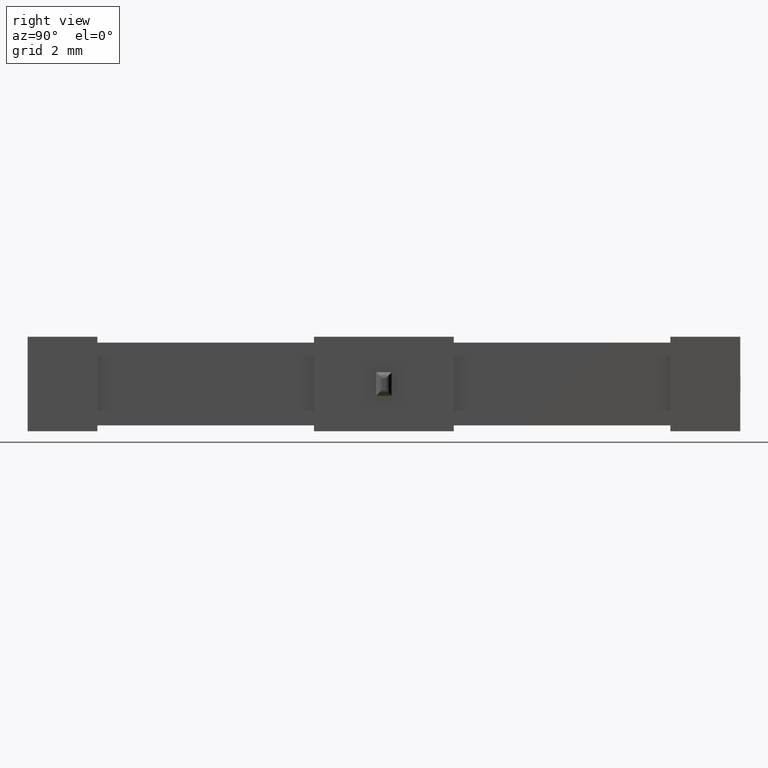
[diagram: clean part render]
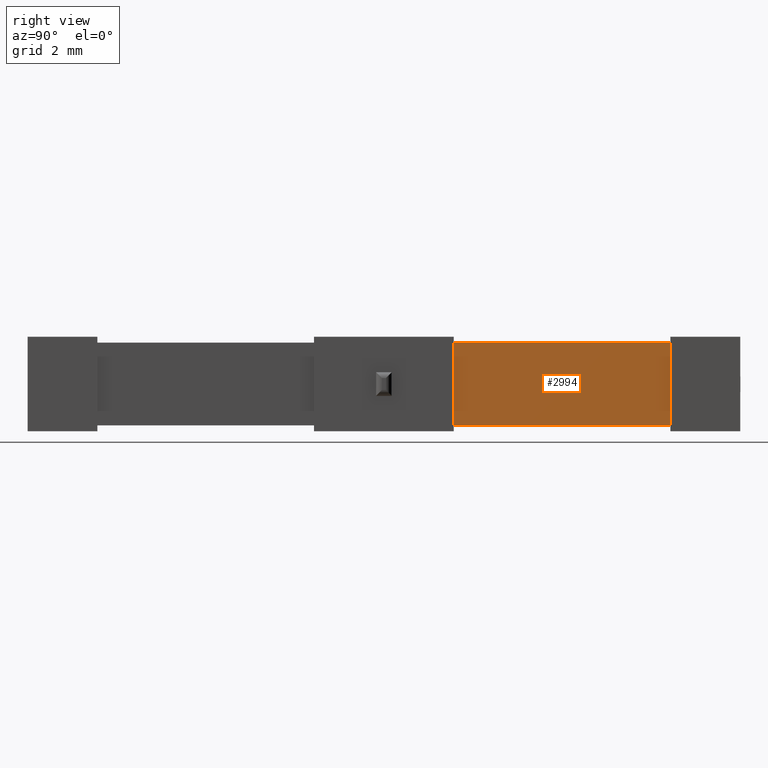
[diagram: same view with one face highlighted and labeled with its STEP entity id]
A machine part, right view. The second image highlights one B-rep face of the part: STEP entity #2994.
In plain terms, the highlighted planar face has unit normal (1, 0, 0).
Its self-contained STEP definition (entity closure, byte-faithful):
#124 = CARTESIAN_POINT ( 'NONE',  ( 2.999999999999999600, 10.82380000000000400, 2.249999999999999100 ) ) ;
#147 = VECTOR ( 'NONE', #696, 1000.000000000000000 ) ;
#228 = VECTOR ( 'NONE', #3019, 1000.000000000000000 ) ;
#390 = EDGE_CURVE ( 'NONE', #753, #2852, #2934, .T. ) ;
#535 = EDGE_CURVE ( 'NONE', #2852, #2542, #2005, .T. ) ;
#583 = EDGE_LOOP ( 'NONE', ( #796, #3065, #3138, #3170 ) ) ;
#616 = VECTOR ( 'NONE', #2770, 1000.000000000000000 ) ;
#696 = DIRECTION ( 'NONE',  ( 0.0000000000000000000, -1.000000000000000000, -1.576333487184506900E-016 ) ) ;
#753 = VERTEX_POINT ( 'NONE', #3317 ) ;
#790 = LINE ( 'NONE', #2794, #3371 ) ;
#796 = ORIENTED_EDGE ( 'NONE', *, *, #390, .T. ) ;
#1073 = CARTESIAN_POINT ( 'NONE',  ( 2.999999999999999600, 16.32620000000000700, 0.1500000000000005800 ) ) ;
#1496 = DIRECTION ( 'NONE',  ( 0.0000000000000000000, 0.0000000000000000000, -1.000000000000000000 ) ) ;
#1513 = DIRECTION ( 'NONE',  ( -0.0000000000000000000, -0.0000000000000000000, 1.000000000000000000 ) ) ;
#1672 = FACE_OUTER_BOUND ( 'NONE', #583, .T. ) ;
#2005 = LINE ( 'NONE', #124, #616 ) ;
#2009 = CARTESIAN_POINT ( 'NONE',  ( 2.999999999999999600, 0.0000000000000000000, 0.0000000000000000000 ) ) ;
#2140 = CARTESIAN_POINT ( 'NONE',  ( 2.999999999999999600, 10.82380000000000400, 2.249999999999999100 ) ) ;
#2224 = AXIS2_PLACEMENT_3D ( 'NONE', #2009, #3045, #1496 ) ;
#2250 = CARTESIAN_POINT ( 'NONE',  ( 2.999999999999999600, 16.32620000000000700, 2.250000000000000000 ) ) ;
#2506 = CARTESIAN_POINT ( 'NONE',  ( 2.999999999999999600, 16.32620000000000700, 0.1500000000000005800 ) ) ;
#2542 = VERTEX_POINT ( 'NONE', #2561 ) ;
#2561 = CARTESIAN_POINT ( 'NONE',  ( 2.999999999999999600, 10.82380000000000400, 0.1499999999999999100 ) ) ;
#2616 = EDGE_CURVE ( 'NONE', #2897, #753, #790, .T. ) ;
#2770 = DIRECTION ( 'NONE',  ( 0.0000000000000000000, 0.0000000000000000000, -1.000000000000000000 ) ) ;
#2794 = CARTESIAN_POINT ( 'NONE',  ( 2.999999999999999600, 16.32620000000000700, 2.250000000000000000 ) ) ;
#2852 = VERTEX_POINT ( 'NONE', #2140 ) ;
#2897 = VERTEX_POINT ( 'NONE', #1073 ) ;
#2934 = LINE ( 'NONE', #2250, #147 ) ;
#2962 = PLANE ( 'NONE',  #2224 ) ;
#2994 = ADVANCED_FACE ( 'NONE', ( #1672 ), #2962, .T. ) ;
#3019 = DIRECTION ( 'NONE',  ( -0.0000000000000000000, 1.000000000000000000, 1.231510536862895900E-016 ) ) ;
#3045 = DIRECTION ( 'NONE',  ( 1.000000000000000000, 0.0000000000000000000, 0.0000000000000000000 ) ) ;
#3065 = ORIENTED_EDGE ( 'NONE', *, *, #535, .T. ) ;
#3119 = LINE ( 'NONE', #2506, #228 ) ;
#3138 = ORIENTED_EDGE ( 'NONE', *, *, #3200, .T. ) ;
#3170 = ORIENTED_EDGE ( 'NONE', *, *, #2616, .T. ) ;
#3200 = EDGE_CURVE ( 'NONE', #2542, #2897, #3119, .T. ) ;
#3317 = CARTESIAN_POINT ( 'NONE',  ( 2.999999999999999600, 16.32620000000000700, 2.250000000000000000 ) ) ;
#3371 = VECTOR ( 'NONE', #1513, 1000.000000000000000 ) ;